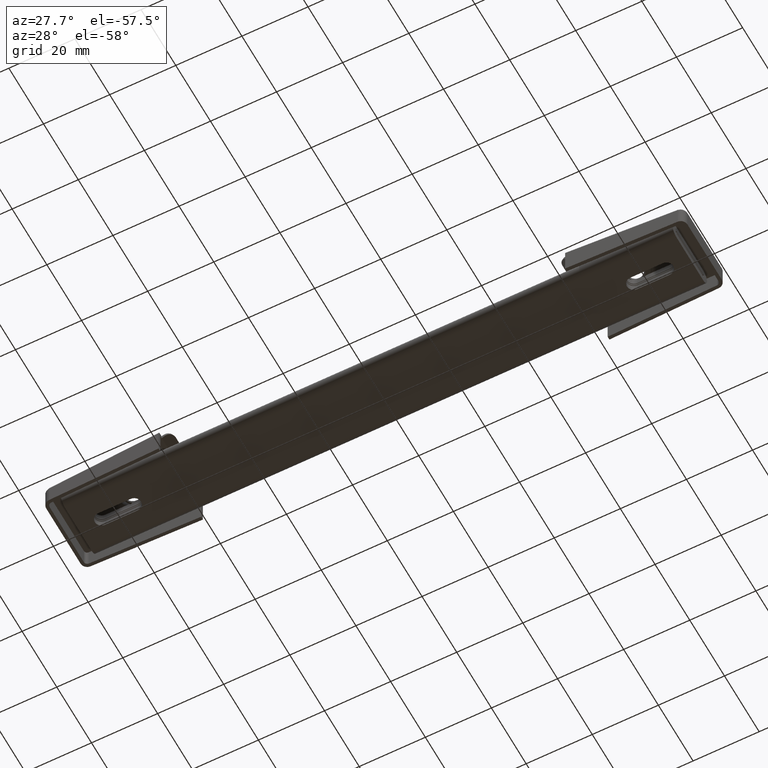
[diagram: clean part render]
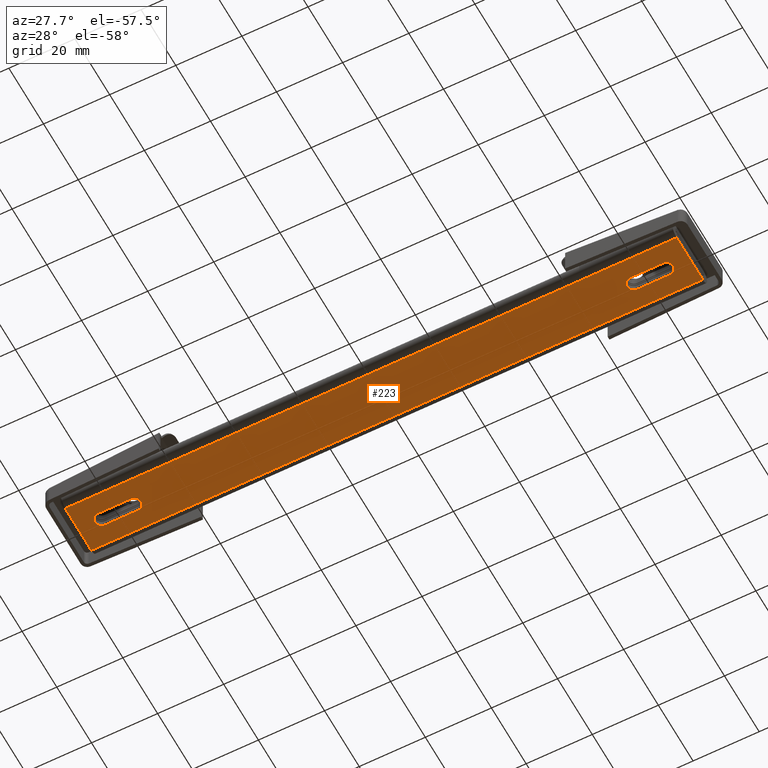
[diagram: same view with one face highlighted and labeled with its STEP entity id]
A machine part, auxiliary view. The second image highlights one B-rep face of the part: STEP entity #223.
In plain terms, the highlighted planar face has unit normal (0, 0, 1).
Its self-contained STEP definition (entity closure, byte-faithful):
#223=ADVANCED_FACE('',(#897,#898,#899),#896,.F.);
#896=PLANE('',#1458);
#897=FACE_OUTER_BOUND('',#1459,.T.);
#898=FACE_BOUND('',#1460,.T.);
#899=FACE_BOUND('',#1461,.T.);
#1455=CARTESIAN_POINT('',(-1.02500000000E+02,-9.00000000000E+00,0.00000000000E+00));
#1456=DIRECTION('',(0.00000000000E+00,0.00000000000E+00,1.00000000000E+00));
#1457=DIRECTION('',(1.00000000000E+00,0.00000000000E+00,0.00000000000E+00));
#1458=AXIS2_PLACEMENT_3D('',#1455,#1456,#1457);
#1459=EDGE_LOOP('',(#1852,#1853,#1854,#1855));
#1460=EDGE_LOOP('',(#1856,#1857,#1858,#1859));
#1461=EDGE_LOOP('',(#1860,#1861,#1862,#1863));
#1852=ORIENTED_EDGE('',*,*,#2097,.F.);
#1853=ORIENTED_EDGE('',*,*,#2112,.T.);
#1854=ORIENTED_EDGE('',*,*,#2088,.F.);
#1855=ORIENTED_EDGE('',*,*,#2113,.T.);
#1856=ORIENTED_EDGE('',*,*,#2082,.F.);
#1857=ORIENTED_EDGE('',*,*,#2085,.F.);
#1858=ORIENTED_EDGE('',*,*,#2087,.F.);
#1859=ORIENTED_EDGE('',*,*,#2079,.F.);
#1860=ORIENTED_EDGE('',*,*,#2066,.F.);
#1861=ORIENTED_EDGE('',*,*,#2075,.F.);
#1862=ORIENTED_EDGE('',*,*,#2063,.F.);
#1863=ORIENTED_EDGE('',*,*,#2060,.F.);
#2060=EDGE_CURVE('',#2999,#2985,#3006,.T.);
#2063=EDGE_CURVE('',#2985,#3013,#3026,.T.);
#2066=EDGE_CURVE('',#3039,#2999,#3046,.T.);
#2075=EDGE_CURVE('',#3013,#3039,#3106,.T.);
#2079=EDGE_CURVE('',#3127,#3113,#3134,.T.);
#2082=EDGE_CURVE('',#3147,#3127,#3154,.T.);
#2085=EDGE_CURVE('',#3167,#3147,#3174,.T.);
#2087=EDGE_CURVE('',#3113,#3167,#3186,.T.);
#2088=EDGE_CURVE('',#3192,#3193,#3194,.T.);
#2097=EDGE_CURVE('',#3249,#3256,#3257,.T.);
#2112=EDGE_CURVE('',#3249,#3193,#3357,.T.);
#2113=EDGE_CURVE('',#3192,#3256,#3363,.T.);
#2985=VERTEX_POINT('',#3954);
#2999=VERTEX_POINT('',#3962);
#3006=LINE('',#3966,#3967);
#3013=VERTEX_POINT('',#3970);
#3026=CIRCLE('',#3981,2.05000000000E+00);
#3039=VERTEX_POINT('',#3987);
#3046=CIRCLE('',#3994,2.05000000000E+00);
#3106=LINE('',#4027,#4028);
#3113=VERTEX_POINT('',#4031);
#3127=VERTEX_POINT('',#4040);
#3134=CIRCLE('',#4047,2.05000000000E+00);
#3147=VERTEX_POINT('',#4052);
#3154=LINE('',#4056,#4057);
#3167=VERTEX_POINT('',#4064);
#3174=CIRCLE('',#4071,2.05000000000E+00);
#3186=LINE('',#4075,#4076);
#3192=VERTEX_POINT('',#4078);
#3193=VERTEX_POINT('',#4079);
#3194=LINE('',#4080,#4081);
#3249=VERTEX_POINT('',#4115);
#3256=VERTEX_POINT('',#4120);
#3257=LINE('',#4121,#4122);
#3357=LINE('',#4182,#4183);
#3363=LINE('',#4185,#4186);
#3954=CARTESIAN_POINT('',(-7.55504000000E+01,2.05000000000E+00,0.00000000000E+00));
#3962=CARTESIAN_POINT('',(-8.54504000000E+01,2.05000000000E+00,0.00000000000E+00));
#3966=CARTESIAN_POINT('',(-8.54504000000E+01,2.05000000000E+00,0.00000000000E+00));
#3967=VECTOR('',#3968,9.90000000000E+00);
#3968=DIRECTION('',(1.00000000000E+00,0.00000000000E+00,0.00000000000E+00));
#3970=CARTESIAN_POINT('',(-7.55504000000E+01,-2.05000000000E+00,0.00000000000E+00));
#3978=CARTESIAN_POINT('',(-7.55504000000E+01,0.00000000000E+00,0.00000000000E+00));
#3979=DIRECTION('',(0.00000000000E+00,0.00000000000E+00,-1.00000000000E+00));
#3980=DIRECTION('',(-1.00000000000E+00,-0.00000000000E+00,-0.00000000000E+00));
#3981=AXIS2_PLACEMENT_3D('',#3978,#3979,#3980);
#3987=CARTESIAN_POINT('',(-8.54504000000E+01,-2.05000000000E+00,0.00000000000E+00));
#3991=CARTESIAN_POINT('',(-8.54504000000E+01,0.00000000000E+00,0.00000000000E+00));
#3992=DIRECTION('',(0.00000000000E+00,0.00000000000E+00,-1.00000000000E+00));
#3993=DIRECTION('',(1.83690953073E-16,1.00000000000E+00,0.00000000000E+00));
#3994=AXIS2_PLACEMENT_3D('',#3991,#3992,#3993);
#4027=CARTESIAN_POINT('',(-7.55504000000E+01,-2.05000000000E+00,0.00000000000E+00));
#4028=VECTOR('',#4029,9.90000000000E+00);
#4029=DIRECTION('',(-1.00000000000E+00,0.00000000000E+00,0.00000000000E+00));
#4031=CARTESIAN_POINT('',(7.55500000000E+01,2.05000000000E+00,0.00000000000E+00));
#4040=CARTESIAN_POINT('',(7.55500000000E+01,-2.05000000000E+00,0.00000000000E+00));
#4044=CARTESIAN_POINT('',(7.55500000000E+01,0.00000000000E+00,0.00000000000E+00));
#4045=DIRECTION('',(0.00000000000E+00,0.00000000000E+00,-1.00000000000E+00));
#4046=DIRECTION('',(1.83690953073E-16,1.00000000000E+00,0.00000000000E+00));
#4047=AXIS2_PLACEMENT_3D('',#4044,#4045,#4046);
#4052=CARTESIAN_POINT('',(8.54500000000E+01,-2.05000000000E+00,0.00000000000E+00));
#4056=CARTESIAN_POINT('',(8.54500000000E+01,-2.05000000000E+00,0.00000000000E+00));
#4057=VECTOR('',#4058,9.90000000000E+00);
#4058=DIRECTION('',(-1.00000000000E+00,0.00000000000E+00,0.00000000000E+00));
#4064=CARTESIAN_POINT('',(8.54500000000E+01,2.05000000000E+00,0.00000000000E+00));
#4068=CARTESIAN_POINT('',(8.54500000000E+01,0.00000000000E+00,0.00000000000E+00));
#4069=DIRECTION('',(0.00000000000E+00,0.00000000000E+00,-1.00000000000E+00));
#4070=DIRECTION('',(-1.00000000000E+00,-0.00000000000E+00,-0.00000000000E+00));
#4071=AXIS2_PLACEMENT_3D('',#4068,#4069,#4070);
#4075=CARTESIAN_POINT('',(7.55500000000E+01,2.05000000000E+00,0.00000000000E+00));
#4076=VECTOR('',#4077,9.90000000000E+00);
#4077=DIRECTION('',(1.00000000000E+00,0.00000000000E+00,0.00000000000E+00));
#4078=CARTESIAN_POINT('',(9.25000000000E+01,-7.50000000000E+00,0.00000000000E+00));
#4079=CARTESIAN_POINT('',(9.25000000000E+01,7.50000000000E+00,0.00000000000E+00));
#4080=CARTESIAN_POINT('',(9.25000000000E+01,-7.50000000000E+00,0.00000000000E+00));
#4081=VECTOR('',#4082,1.50000000000E+01);
#4082=DIRECTION('',(0.00000000000E+00,1.00000000000E+00,0.00000000000E+00));
#4115=CARTESIAN_POINT('',(-9.25000000000E+01,7.50000000000E+00,0.00000000000E+00));
#4120=CARTESIAN_POINT('',(-9.25000000000E+01,-7.50000000000E+00,0.00000000000E+00));
#4121=CARTESIAN_POINT('',(-9.25000000000E+01,7.50000000000E+00,0.00000000000E+00));
#4122=VECTOR('',#4123,1.50000000000E+01);
#4123=DIRECTION('',(-5.68434188608E-15,-1.00000000000E+00,0.00000000000E+00));
#4182=CARTESIAN_POINT('',(-9.25000000000E+01,7.50000000000E+00,0.00000000000E+00));
#4183=VECTOR('',#4184,1.85000000000E+02);
#4184=DIRECTION('',(1.00000000000E+00,-3.02460759141E-16,0.00000000000E+00));
#4185=CARTESIAN_POINT('',(9.25000000000E+01,-7.50000000000E+00,0.00000000000E+00));
#4186=VECTOR('',#4187,1.85000000000E+02);
#4187=DIRECTION('',(-1.00000000000E+00,8.64173597546E-17,0.00000000000E+00));